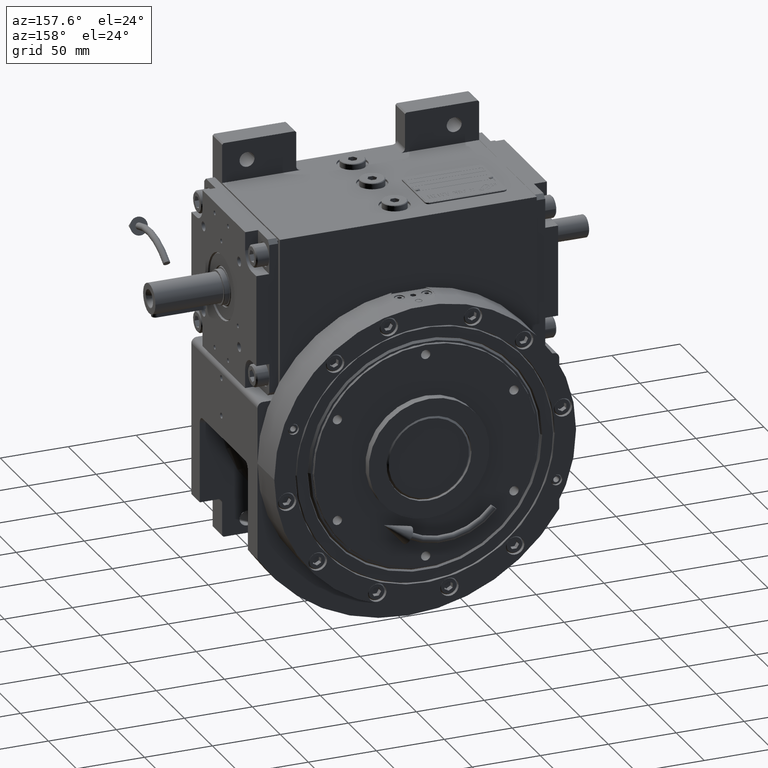
[diagram: clean part render]
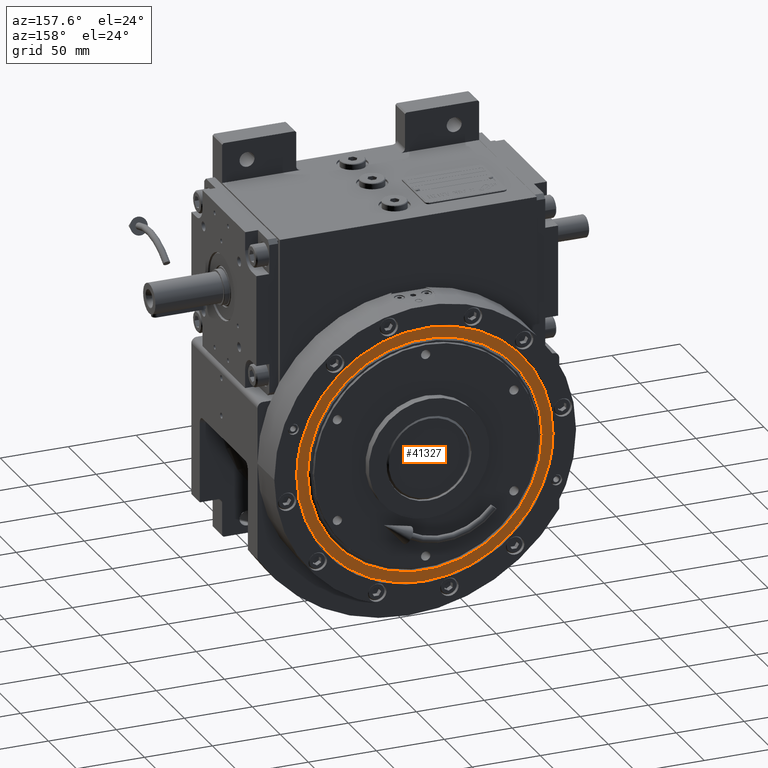
[diagram: same view with one face highlighted and labeled with its STEP entity id]
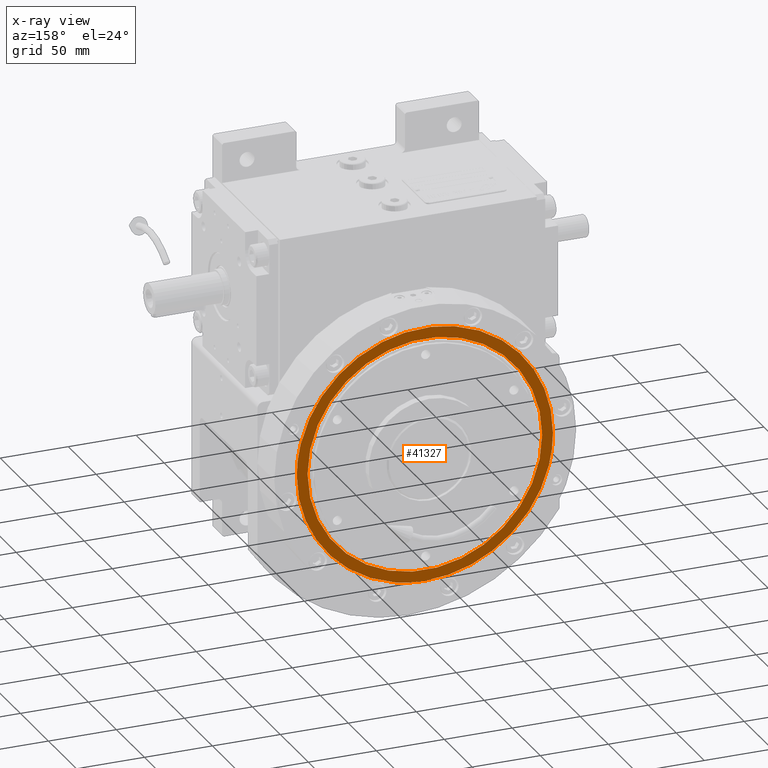
[diagram: x-ray of the same camera — body ghosted, the highlighted face saturated]
A machine part, auxiliary view. The second image highlights one B-rep face of the part: STEP entity #41327.
The next image is the same camera in x-ray: the body ghosted, the highlighted face saturated — about 0% of this face is hidden behind the body in this view.
In plain terms, the highlighted planar face has unit normal (-0, -1, 0).
Its self-contained STEP definition (entity closure, byte-faithful):
#720 = EDGE_CURVE ( 'NONE', #30881, #23113, #60141, .T. ) ;
#1024 = CARTESIAN_POINT ( 'NONE',  ( -47.21632025387000198, 13.00000000000000888, -81.80368307890346102 ) ) ;
#1369 = CARTESIAN_POINT ( 'NONE',  ( -92.72789166449005904, 13.00000000000001421, -16.86919510746665907 ) ) ;
#1712 = CARTESIAN_POINT ( 'NONE',  ( -47.21698558698388837, 13.00000000000000711, 81.80332928349291421 ) ) ;
#1788 = B_SPLINE_CURVE_WITH_KNOTS ( 'NONE', 3,
 ( #64724, #65400, #64037, #27530, #43041, #28551, #59225, #34056, #7854, #49224, #49555, #17879, #27878, #58878, #38904, #11664, #1712, #48538, #43387, #17537, #59915, #33389, #2047, #64380, #39239, #38234, #44065, #33043, #65067, #12699, #54724, #7519, #2383, #23381, #44396, #18218, #60245, #13033, #9194, #34392, #50238, #30569, #18880, #25053, #30223, #35078 ),
 .UNSPECIFIED., .F., .F.,
 ( 4, 1, 1, 1, 2, 2, 2, 2, 2, 2, 2, 2, 2, 2, 2, 2, 2, 2, 2, 2, 1, 1, 1, 2, 2, 4 ),
 ( 0.000000000000000000, 0.03125000000000006245, 0.04687500000000009714, 0.05468750000000010408, 0.05859375000000010408, 0.06250000000000009714, 0.1250000000000001110, 0.1875000000000000833, 0.2500000000000001110, 0.3125000000000001110, 0.3750000000000001110, 0.4375000000000001665, 0.5000000000000001110, 0.5625000000000001110, 0.6250000000000001110, 0.6875000000000001110, 0.7500000000000001110, 0.8125000000000002220, 0.8437500000000001110, 0.8750000000000002220, 0.9062500000000001110, 0.9218750000000001110, 0.9296875000000001110, 0.9335937500000001110, 0.9375000000000001110, 1.000000000000000000 ),
 .UNSPECIFIED. ) ;
#2047 = CARTESIAN_POINT ( 'NONE',  ( 6.188064834388707247, 12.99999999999999822, 94.24939498677791505 ) ) ;
#2276 = FACE_BOUND ( 'NONE', #16779, .T. ) ;
#2382 = AXIS2_PLACEMENT_3D ( 'NONE', #5542, #20724, #41739 ) ;
#2383 = CARTESIAN_POINT ( 'NONE',  ( 80.08440033528941626, 12.99999999999998579, 49.78979572730145264 ) ) ;
#4954 = CARTESIAN_POINT ( 'NONE',  ( 12.31741219750706584, 12.99999999999999645, -93.64577967173698880 ) ) ;
#5542 = CARTESIAN_POINT ( 'NONE',  ( -7.105427357600998703E-15, 12.99999999999999822, 0.000000000000000000 ) ) ;
#5956 = CARTESIAN_POINT ( 'NONE',  ( -4.750002575161732142E-10, 12.99999926843250364, -94.24939639732632202 ) ) ;
#6729 = CARTESIAN_POINT ( 'NONE',  ( 2.391733729746234919E-15, 12.99999999999999822, 0.000000000000000000 ) ) ;
#7519 = CARTESIAN_POINT ( 'NONE',  ( 74.92832980765869877, 12.99999999999998401, 57.50611150518724202 ) ) ;
#7854 = CARTESIAN_POINT ( 'NONE',  ( -91.23099832253642205, 13.00000000000001243, 24.45642948798784033 ) ) ;
#9194 = CARTESIAN_POINT ( 'NONE',  ( 91.25492794431923471, 12.99999999999998224, 23.65875911349854377 ) ) ;
#9413 = CARTESIAN_POINT ( 'NONE',  ( 91.87864083296243223, 12.99999999999998579, -21.03052137700700186 ) ) ;
#10550 = AXIS2_PLACEMENT_3D ( 'NONE', #6729, #65287, #17769 ) ;
#10976 = CARTESIAN_POINT ( 'NONE',  ( -88.25979141511969317, 13.00000000000001599, -33.20801552105344712 ) ) ;
#11359 = DIRECTION ( 'NONE',  ( 0.000000000000000000, 1.000000000000000000, 0.000000000000000000 ) ) ;
#11664 = CARTESIAN_POINT ( 'NONE',  ( -57.50776741289832472, 13.00000000000001066, 74.92742189962201849 ) ) ;
#11668 = CARTESIAN_POINT ( 'NONE',  ( -81.80396444929496624, 13.00000000000001599, -47.21638284544910391 ) ) ;
#12298 = CIRCLE ( 'NONE', #2382, 86.28874972250939379 ) ;
#12699 = CARTESIAN_POINT ( 'NONE',  ( 62.26881564477995568, 12.99999999999998757, 71.02012639253642590 ) ) ;
#13033 = CARTESIAN_POINT ( 'NONE',  ( 89.81741048143769035, 12.99999999999998224, 28.85583670718994398 ) ) ;
#14787 = ORIENTED_EDGE ( 'NONE', *, *, #45551, .T. ) ;
#15964 = CARTESIAN_POINT ( 'NONE',  ( 41.78546846165978934, 12.99999999999999467, -84.70653765100159660 ) ) ;
#16513 = CARTESIAN_POINT ( 'NONE',  ( -24.45733339272096885, 13.00000000000000533, -91.23113453317759536 ) ) ;
#16557 = CARTESIAN_POINT ( 'NONE',  ( -7.105427357600998703E-15, 12.99999999999999822, 0.000000000000000000 ) ) ;
#16779 = EDGE_LOOP ( 'NONE', ( #64751, #37878 ) ) ;
#16854 = CARTESIAN_POINT ( 'NONE',  ( -6.188823442208166270, 13.00000000000000178, -94.24939539048016002 ) ) ;
#17090 = PLANE ( 'NONE',  #10550 ) ;
#17288 = ORIENTED_EDGE ( 'NONE', *, *, #40353, .T. ) ;
#17537 = CARTESIAN_POINT ( 'NONE',  ( -24.45656220391327196, 13.00000000000000533, 91.23121157456202468 ) ) ;
#17769 = DIRECTION ( 'NONE',  ( -1.000000000000000000, 1.836970198721029688E-16, 0.000000000000000000 ) ) ;
#17879 = CARTESIAN_POINT ( 'NONE',  ( -81.80347156642584139, 13.00000000000001066, 47.21700500637675191 ) ) ;
#18218 = CARTESIAN_POINT ( 'NONE',  ( 85.89146897383724877, 12.99999999999998224, 38.92515172256140943 ) ) ;
#18880 = CARTESIAN_POINT ( 'NONE',  ( 92.36357144125375385, 12.99999999999998046, 18.76141274391883584 ) ) ;
#19461 = CARTESIAN_POINT ( 'NONE',  ( 94.24560201830634298, 12.99999999999997691, -6.204878922547933051 ) ) ;
#19779 = CARTESIAN_POINT ( 'NONE',  ( 89.81762061497992988, 12.99999999999998401, -28.85515833000986419 ) ) ;
#20588 = VERTEX_POINT ( 'NONE', #24645 ) ;
#20724 = DIRECTION ( 'NONE',  ( 0.000000000000000000, -1.000000000000000000, 0.000000000000000000 ) ) ;
#21050 = EDGE_LOOP ( 'NONE', ( #17288, #33354, #14787 ) ) ;
#21349 = CARTESIAN_POINT ( 'NONE',  ( -71.02075982352351957, 13.00000000000001066, -62.26783532253268305 ) ) ;
#22023 = CARTESIAN_POINT ( 'NONE',  ( -62.26847636492563254, 13.00000000000000711, -71.02046540356332116 ) ) ;
#22367 = CARTESIAN_POINT ( 'NONE',  ( -93.36047801255725176, 13.00000000000001421, -13.07234578650736090 ) ) ;
#22717 = CARTESIAN_POINT ( 'NONE',  ( -74.92745331198776171, 13.00000000000001066, -57.50742295523340175 ) ) ;
#23113 = VERTEX_POINT ( 'NONE', #32901 ) ;
#23381 = CARTESIAN_POINT ( 'NONE',  ( 81.66954366861010328, 12.99999999999998757, 47.14586859460513324 ) ) ;
#23928 = CARTESIAN_POINT ( 'NONE',  ( 92.28552216032852584, 12.99999999999998046, -19.14172240999324970 ) ) ;
#24645 = CARTESIAN_POINT ( 'NONE',  ( 94.24944211514589654, 12.99999853686481543, 9.787287562788809561E-08 ) ) ;
#24933 = CARTESIAN_POINT ( 'NONE',  ( 92.36355285681277394, 12.99999999999998224, -18.76144016454714247 ) ) ;
#25053 = CARTESIAN_POINT ( 'NONE',  ( 93.64208806101987648, 12.99999999999997868, 12.33301709024852322 ) ) ;
#26678 = CARTESIAN_POINT ( 'NONE',  ( -86.28874972250939379, 12.99999999999999822, -3.522441371669941082E-15 ) ) ;
#26847 = CARTESIAN_POINT ( 'NONE',  ( -92.58684909397656781, 13.00000000000001243, -17.62668795682278144 ) ) ;
#27196 = CARTESIAN_POINT ( 'NONE',  ( -12.31713746797633036, 13.00000000000000000, -93.64575839418195358 ) ) ;
#27530 = CARTESIAN_POINT ( 'NONE',  ( -93.36044082970003899, 13.00000000000001776, 13.07209752429515071 ) ) ;
#27535 = CARTESIAN_POINT ( 'NONE',  ( -91.08580620523591165, 13.00000000000001776, -24.41240114005654149 ) ) ;
#27878 = CARTESIAN_POINT ( 'NONE',  ( -74.92794871702800208, 13.00000000000001421, 57.50682429484744063 ) ) ;
#28551 = CARTESIAN_POINT ( 'NONE',  ( -92.72786502728057201, 13.00000000000001066, 16.86911023794614906 ) ) ;
#30223 = CARTESIAN_POINT ( 'NONE',  ( 94.24564351062443279, 12.99999999999997868, 6.205259815876968510 ) ) ;
#30451 = CARTESIAN_POINT ( 'NONE',  ( 88.25922597284069582, 12.99999999999997691, -33.20927813957377595 ) ) ;
#30569 = CARTESIAN_POINT ( 'NONE',  ( 92.28551101580244165, 12.99999999999998224, 19.14181347064138450 ) ) ;
#30881 = VERTEX_POINT ( 'NONE', #65338 ) ;
#31127 = CARTESIAN_POINT ( 'NONE',  ( 6.188822929752733515, 12.99999999999999467, -94.24931948713785346 ) ) ;
#32711 = CARTESIAN_POINT ( 'NONE',  ( -84.70628271957605193, 13.00000000000001243, -41.78619406184293439 ) ) ;
#32901 = CARTESIAN_POINT ( 'NONE',  ( -94.24944211514539916, 12.99999853686453832, -9.787288562209340744E-08 ) ) ;
#33043 = CARTESIAN_POINT ( 'NONE',  ( 47.21704020545979574, 12.99999999999998934, 81.80320234741162722 ) ) ;
#33354 = ORIENTED_EDGE ( 'NONE', *, *, #720, .T. ) ;
#33364 = CIRCLE ( 'NONE', #47649, 86.28874972250939379 ) ;
#33389 = CARTESIAN_POINT ( 'NONE',  ( -6.188052557307952561, 13.00000000000000000, 94.24931989091187745 ) ) ;
#33958 = FACE_OUTER_BOUND ( 'NONE', #21050, .T. ) ;
#34056 = CARTESIAN_POINT ( 'NONE',  ( -92.51424279014365482, 13.00000000000001243, 18.00370395316091177 ) ) ;
#34392 = CARTESIAN_POINT ( 'NONE',  ( 91.87856151102471358, 12.99999999999998224, 21.03081668039316909 ) ) ;
#34762 = EDGE_CURVE ( 'NONE', #61029, #35775, #12298, .T. ) ;
#35078 = CARTESIAN_POINT ( 'NONE',  ( 94.24944211514589654, 12.99999853686481543, 9.787287562788809561E-08 ) ) ;
#35775 = VERTEX_POINT ( 'NONE', #26678 ) ;
#37551 = CARTESIAN_POINT ( 'NONE',  ( -30.34985917850908166, 13.00000000000000178, -89.44351944063957660 ) ) ;
#37593 = DIRECTION ( 'NONE',  ( 1.000000000000000000, 0.000000000000000000, 0.000000000000000000 ) ) ;
#37878 = ORIENTED_EDGE ( 'NONE', *, *, #34762, .T. ) ;
#37887 = CARTESIAN_POINT ( 'NONE',  ( -57.50844811830059911, 13.00000000000001066, -74.92706057312612700 ) ) ;
#38234 = CARTESIAN_POINT ( 'NONE',  ( 30.35084599717479037, 12.99999999999999289, 89.44311100058160946 ) ) ;
#38904 = CARTESIAN_POINT ( 'NONE',  ( -62.26905732995201959, 13.00000000000000533, 71.01998343738506492 ) ) ;
#39239 = CARTESIAN_POINT ( 'NONE',  ( 24.45633585850221792, 12.99999999999999112, 91.23133258168961390 ) ) ;
#39786 = CARTESIAN_POINT ( 'NONE',  ( 74.92802299687454592, 12.99999999999998579, -57.50671339819135142 ) ) ;
#40353 = EDGE_CURVE ( 'NONE', #20588, #30881, #62309, .T. ) ;
#40474 = CARTESIAN_POINT ( 'NONE',  ( 93.64203979183442073, 12.99999999999998401, -12.33263735365398261 ) ) ;
#41327 = ADVANCED_FACE ( 'NONE', ( #33958, #2276 ), #17090, .F. ) ;
#41739 = DIRECTION ( 'NONE',  ( 1.000000000000000000, 0.000000000000000000, 0.000000000000000000 ) ) ;
#43041 = CARTESIAN_POINT ( 'NONE',  ( -92.93239649362763544, 13.00000000000001776, 15.73190431110791820 ) ) ;
#43387 = CARTESIAN_POINT ( 'NONE',  ( -30.35057926119715788, 13.00000000000000533, 89.44330070763948015 ) ) ;
#43393 = CARTESIAN_POINT ( 'NONE',  ( -94.24754408026032593, 13.00000000000001066, -3.102630036226951660 ) ) ;
#43734 = CARTESIAN_POINT ( 'NONE',  ( -92.93242714885708722, 13.00000000000001421, -15.73204760044743722 ) ) ;
#44065 = CARTESIAN_POINT ( 'NONE',  ( 41.78480277720910152, 12.99999999999999112, 84.70689155477759869 ) ) ;
#44396 = CARTESIAN_POINT ( 'NONE',  ( 84.57273665013896391, 12.99999999999998046, 41.71437058241039608 ) ) ;
#44946 = CARTESIAN_POINT ( 'NONE',  ( 84.70738662765715787, 12.99999999999998579, -41.78368769420135465 ) ) ;
#45551 = EDGE_CURVE ( 'NONE', #23113, #20588, #1788, .T. ) ;
#45961 = CARTESIAN_POINT ( 'NONE',  ( 92.12548869226274917, 12.99999999999998046, -19.89807843470189042 ) ) ;
#47649 = AXIS2_PLACEMENT_3D ( 'NONE', #16557, #11359, #37593 ) ;
#48538 = CARTESIAN_POINT ( 'NONE',  ( -41.78504774112835207, 13.00000000000000533, 84.70671225324430509 ) ) ;
#48544 = CARTESIAN_POINT ( 'NONE',  ( -91.83476850034548988, 13.00000000000001421, -21.42023963035661183 ) ) ;
#49224 = CARTESIAN_POINT ( 'NONE',  ( -89.44396943640218467, 13.00000000000001066, 30.34921782719041161 ) ) ;
#49555 = CARTESIAN_POINT ( 'NONE',  ( -84.70658843825377460, 13.00000000000001066, 41.78561432307107992 ) ) ;
#50238 = CARTESIAN_POINT ( 'NONE',  ( 92.12544907574091724, 12.99999999999998046, 19.89825485843523012 ) ) ;
#51460 = CARTESIAN_POINT ( 'NONE',  ( 81.80339984370004913, 12.99999999999998401, -47.21711207607859961 ) ) ;
#52145 = CARTESIAN_POINT ( 'NONE',  ( 57.50831579607302046, 12.99999999999998224, -74.92705519097853539 ) ) ;
#52682 = CARTESIAN_POINT ( 'NONE',  ( -94.01978534066630289, 13.00000000000001421, -7.727511635046436567 ) ) ;
#52808 = CARTESIAN_POINT ( 'NONE',  ( 47.21644358347401038, 12.99999999999999112, -81.80369172948788048 ) ) ;
#53704 = CARTESIAN_POINT ( 'NONE',  ( -89.29797632705853516, 13.00000000000001776, -30.30711307040204971 ) ) ;
#54054 = CARTESIAN_POINT ( 'NONE',  ( -41.78578108927783319, 13.00000000000000533, -84.70648663835605419 ) ) ;
#54724 = CARTESIAN_POINT ( 'NONE',  ( 71.02042488391968789, 12.99999999999998579, 62.26816999313714263 ) ) ;
#55618 = CARTESIAN_POINT ( 'NONE',  ( 62.26830642780895175, 12.99999999999998579, -71.02073466936830926 ) ) ;
#58545 = CARTESIAN_POINT ( 'NONE',  ( -92.51427935786725243, 13.00000000000001421, -18.00365169435110602 ) ) ;
#58878 = CARTESIAN_POINT ( 'NONE',  ( -71.02016178034278937, 13.00000000000001066, 62.26832412776272463 ) ) ;
#59225 = CARTESIAN_POINT ( 'NONE',  ( -92.58682540666150373, 13.00000000000001599, 17.62664501861384991 ) ) ;
#59915 = CARTESIAN_POINT ( 'NONE',  ( -12.31789540099181579, 12.99999999999999822, 93.64568320290177894 ) ) ;
#60141 = B_SPLINE_CURVE_WITH_KNOTS ( 'NONE', 3,
 ( #63370, #16854, #27196, #16513, #37551, #54054, #1024, #37887, #22023, #21349, #22717, #11668, #32711, #10976, #53704, #27535, #48544, #58545, #26847, #1369, #43734, #22367, #52682, #43393, #64384 ),
 .UNSPECIFIED., .F., .F.,
 ( 4, 2, 2, 2, 2, 2, 2, 2, 2, 2, 1, 1, 1, 4 ),
 ( 0.4999999793375317636, 0.5624999819203404527, 0.6249999845031490864, 0.6874999870859577200, 0.7499999896687663536, 0.8124999922515748763, 0.8749999948343835099, 0.9062499961257878267, 0.9374999974171921435, 0.9414062475786176831, 0.9453124977400431117, 0.9531249980628941909, 0.9687499987085961273, 1.000000000000000000 ),
 .UNSPECIFIED. ) ;
#60245 = CARTESIAN_POINT ( 'NONE',  ( 88.25910923416114429, 12.99999999999998224, 33.20966217746381943 ) ) ;
#60378 = CARTESIAN_POINT ( 'NONE',  ( 86.28874972250939379, 12.99999999999999822, 0.000000000000000000 ) ) ;
#60798 = CARTESIAN_POINT ( 'NONE',  ( 71.02091702289898478, 12.99999999999998224, -62.26756855509117372 ) ) ;
#61029 = VERTEX_POINT ( 'NONE', #60378 ) ;
#62309 = B_SPLINE_CURVE_WITH_KNOTS ( 'NONE', 3,
 ( #66627, #19461, #40474, #24933, #23928, #45961, #9413, #66958, #19779, #30451, #44946, #51460, #39786, #60798, #55618, #52145, #52808, #15964, #67635, #62480, #4954, #31127, #5956 ),
 .UNSPECIFIED., .F., .F.,
 ( 4, 2, 2, 1, 1, 1, 2, 2, 2, 2, 2, 2, 4 ),
 ( 0.000000000000000000, 0.06249999741719188678, 0.06640624725576635412, 0.07031249709434081452, 0.07812499677148974919, 0.09374999612578764630, 0.1249999948343834127, 0.1874999922515748763, 0.2499999896687663259, 0.3124999870859576645, 0.3749999845031490864, 0.4374999819203403972, 0.4999999793375317636 ),
 .UNSPECIFIED. ) ;
#62480 = CARTESIAN_POINT ( 'NONE',  ( 24.45705594246870618, 12.99999999999999645, -91.23111301022214548 ) ) ;
#63370 = CARTESIAN_POINT ( 'NONE',  ( -4.750002575161732142E-10, 12.99999926843250364, -94.24939639732632202 ) ) ;
#63598 = EDGE_CURVE ( 'NONE', #61029, #35775, #33364, .T. ) ;
#64037 = CARTESIAN_POINT ( 'NONE',  ( -94.01974649356158409, 13.00000000000001243, 7.727178787242088731 ) ) ;
#64380 = CARTESIAN_POINT ( 'NONE',  ( 12.31814553774389154, 12.99999999999999822, 93.64555825020201496 ) ) ;
#64384 = CARTESIAN_POINT ( 'NONE',  ( -94.24944211514539916, 12.99999853686453832, -9.787288562209340744E-08 ) ) ;
#64724 = CARTESIAN_POINT ( 'NONE',  ( -94.24944211514539916, 12.99999853686453832, -9.787288562209340744E-08 ) ) ;
#64751 = ORIENTED_EDGE ( 'NONE', *, *, #63598, .F. ) ;
#65067 = CARTESIAN_POINT ( 'NONE',  ( 57.50773454653339911, 12.99999999999998757, 74.92753704197816944 ) ) ;
#65287 = DIRECTION ( 'NONE',  ( -1.836970198721029688E-16, -1.000000000000000000, 0.000000000000000000 ) ) ;
#65338 = CARTESIAN_POINT ( 'NONE',  ( -4.750002575161732142E-10, 12.99999926843250364, -94.24939639732632202 ) ) ;
#65400 = CARTESIAN_POINT ( 'NONE',  ( -94.24752333410046390, 13.00000000000001066, 3.102439589606559078 ) ) ;
#66627 = CARTESIAN_POINT ( 'NONE',  ( 94.24944211514589654, 12.99999853686481543, 9.787287562788809561E-08 ) ) ;
#66958 = CARTESIAN_POINT ( 'NONE',  ( 91.25507889418359753, 12.99999999999998224, -23.65825057908091367 ) ) ;
#67635 = CARTESIAN_POINT ( 'NONE',  ( 30.35016704680210253, 12.99999999999999112, -89.44347178631926454 ) ) ;